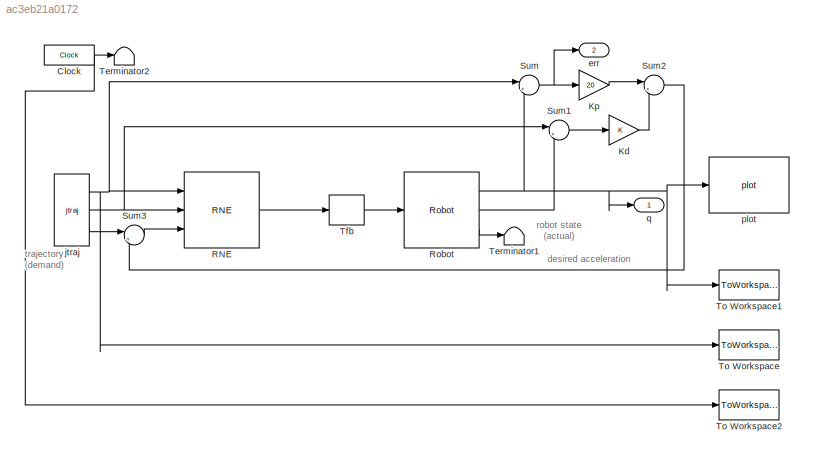
MODEL slx_ac3eb21a0172
KIND model
CONFIG AbsTol = auto
CONFIG FixedStep = 0.01
CONFIG MaxStep = 0.05
CONFIG MinStep = auto
CONFIG PreLoadFcn = puma560\np560 = nofriction(p560);
CONFIG RelTol = 1e-3
CONFIG SampleTimeConstraint = Unconstrained
CONFIG Solver = ode45
CONFIG SolverMode = Auto
CONFIG SolverName = ode45
CONFIG StartTime = 0.0
CONFIG StopTime = 10
BLOCK [Clock] Clock
  DisplayTime = on
BLOCK [Gain] Kd
BLOCK [Gain] Kp
  Gain = 20
BLOCK [Reference] RNE  REF=roblocks/Dynamics/RNE  (lib defined in mdl_2a292b13c81b, mdl_69400f8cfe22, +12 more)
  Ports = [3, 1]
  SourceBlock = roblocks/Dynamics/RNE
BLOCK [Reference] Robot  REF=roblocks/Dynamics/Robot  (lib defined in mdl_2a292b13c81b, mdl_69400f8cfe22, +12 more)
  Ports = [1, 3]
  SourceBlock = roblocks/Dynamics/Robot
BLOCK [Sum] Sum
  IconShape = round
  Inputs = |+-
  Ports = [2, 1]
BLOCK [Sum] Sum1
  IconShape = round
  Inputs = |+-
  Ports = [2, 1]
BLOCK [Sum] Sum2
  IconShape = round
  Inputs = |++
  Ports = [2, 1]
BLOCK [Sum] Sum3
  IconShape = round
  Inputs = |++
  Ports = [2, 1]
BLOCK [Terminator] Terminator1
BLOCK [Terminator] Terminator2
BLOCK [ZeroOrderHold] Tfb
  SampleTime = 0.01
BLOCK [ToWorkspace] To Workspace
  FixptAsFi = on
  MaxDataPoints = inf
  Ports = [1]
  SampleTime = -1
  Save2DSignal = 3-D array (concatenate along third dimension)
  SaveFormat = Timeseries
  VariableName = q_ct_desired
BLOCK [ToWorkspace] To Workspace1
  FixptAsFi = on
  MaxDataPoints = inf
  Ports = [1]
  SampleTime = -1
  Save2DSignal = 3-D array (concatenate along third dimension)
  SaveFormat = Timeseries
  VariableName = q_ct_actual
BLOCK [ToWorkspace] To Workspace2
  FixptAsFi = on
  MaxDataPoints = inf
  Ports = [1]
  SampleTime = -1
  Save2DSignal = 3-D array (concatenate along third dimension)
  SaveFormat = Timeseries
  VariableName = t_ct_sim
BLOCK [Outport] err
  IconDisplay = Port number
  Port = 2
BLOCK [Reference] jtraj  REF=roblocks/Trajectory/jtraj  (lib defined in mdl_2a292b13c81b, mdl_69400f8cfe22, +12 more)
  Ports = [0, 3]
  SourceBlock = roblocks/Trajectory/jtraj
BLOCK [Reference] plot  REF=roblocks/Robot Graphics/plot  (lib defined in mdl_2a292b13c81b, mdl_69400f8cfe22, +12 more)
  Ports = [1]
  SourceBlock = roblocks/Robot Graphics/plot
BLOCK [Outport] q
  IconDisplay = Port number
ANNOTATION (root): desired acceleration
ANNOTATION (root): robot state (actual)
ANNOTATION (root): trajectory (demand)
NET Clock:1 -> Terminator2:1, To Workspace2:1
LINE Kd:1 -> Sum2:2
LINE Kp:1 -> Sum2:1
LINE RNE:1 -> Tfb:1
NET Robot:1 -> Sum:2, To Workspace1:1, plot:1, q:1
LINE Robot:2 -> Sum1:2
LINE Robot:3 -> Terminator1:1
LINE Sum1:1 -> Kd:1
LINE Sum2:1 -> Sum3:2
LINE Sum3:1 -> RNE:3
NET Sum:1 -> Kp:1, err:1
LINE Tfb:1 -> Robot:1
NET jtraj:1 -> RNE:1, Sum:1, To Workspace:1
NET jtraj:2 -> RNE:2, Sum1:1
LINE jtraj:3 -> Sum3:1
note: NET lines group one-source signal fan-out (src -> all destinations, sorted); 1:1 wires keep LINE
